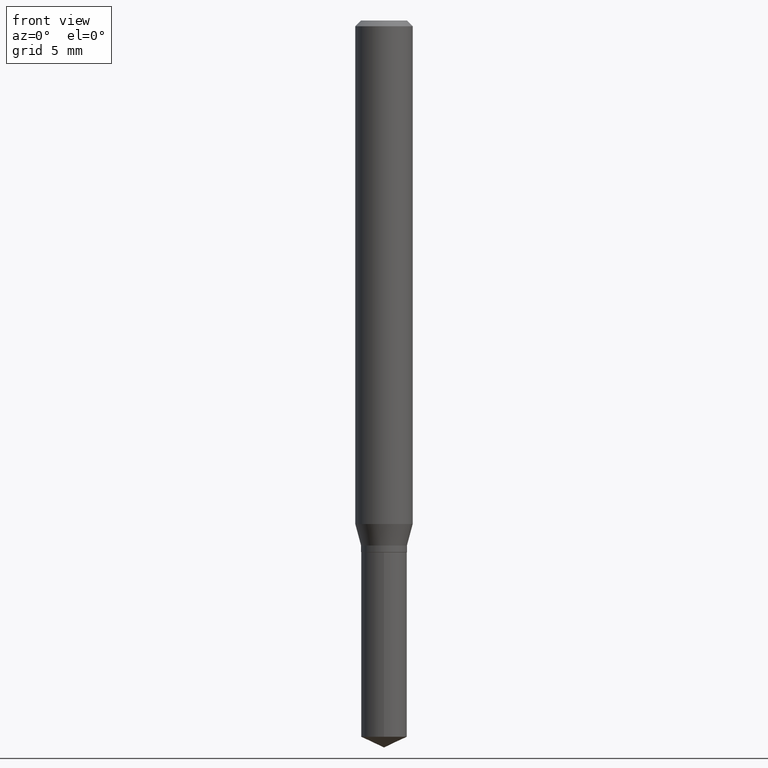
[diagram: clean part render]
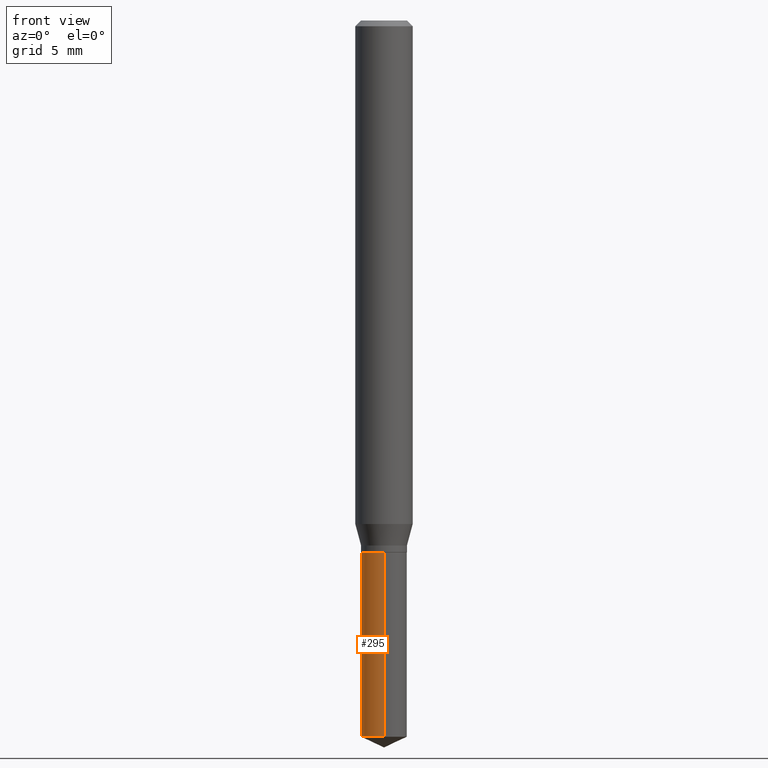
[diagram: same view with one face highlighted and labeled with its STEP entity id]
A machine part, front view. The second image highlights one B-rep face of the part: STEP entity #295.
In plain terms, the highlighted cylindrical surface (edge-blend (fillet) strip) has radius 1.2001 mm, axis along (-0, 0, 1).
Its self-contained STEP definition (entity closure, byte-faithful):
#13 = CARTESIAN_POINT ( 'NONE',  ( 3.357314426466833320E-16, 0.04724999999999485167, -1.474066963152176557 ) ) ;
#14 = VECTOR ( 'NONE', #420, 39.37007874015748143 ) ;
#42 = CARTESIAN_POINT ( 'NONE',  ( 3.357314426466833320E-16, 0.04724999999999617006, -1.094500000000000028 ) ) ;
#65 = DIRECTION ( 'NONE',  ( -2.445458899330790108E-29, 3.491495526022433205E-15, 1.000000000000000000 ) ) ;
#71 = EDGE_CURVE ( 'NONE', #121, #88, #263, .T. ) ;
#78 = DIRECTION ( 'NONE',  ( -6.982962677686265922E-15, -1.000000000000000000, 2.890844437739961472E-15 ) ) ;
#81 = EDGE_CURVE ( 'NONE', #88, #383, #136, .T. ) ;
#88 = VERTEX_POINT ( 'NONE', #42 ) ;
#106 = DIRECTION ( 'NONE',  ( -2.445458899330790108E-29, 3.491495526022433205E-15, 1.000000000000000000 ) ) ;
#113 = ORIENTED_EDGE ( 'NONE', *, *, #248, .T. ) ;
#121 = VERTEX_POINT ( 'NONE', #13 ) ;
#136 = CIRCLE ( 'NONE', #363, 0.04724999999999999339 ) ;
#144 = AXIS2_PLACEMENT_3D ( 'NONE', #153, #418, #78 ) ;
#153 = CARTESIAN_POINT ( 'NONE',  ( 2.676565608369631794E-29, -3.821426325363822773E-15, -1.094499999999999806 ) ) ;
#165 = CIRCLE ( 'NONE', #438, 0.04724999999999999339 ) ;
#181 = ORIENTED_EDGE ( 'NONE', *, *, #71, .F. ) ;
#186 = DIRECTION ( 'NONE',  ( -6.982962677686265922E-15, -1.000000000000000000, 5.781688875479922944E-15 ) ) ;
#248 = EDGE_CURVE ( 'NONE', #121, #316, #165, .T. ) ;
#258 = VECTOR ( 'NONE', #260, 39.37007874015748143 ) ;
#260 = DIRECTION ( 'NONE',  ( -2.445458899330790108E-29, 3.491495526022433599E-15, 1.000000000000000000 ) ) ;
#263 = LINE ( 'NONE', #275, #14 ) ;
#275 = CARTESIAN_POINT ( 'NONE',  ( 3.357314426466740136E-16, 0.04724999999999617006, -1.094500000000000028 ) ) ;
#277 = EDGE_CURVE ( 'NONE', #316, #383, #299, .T. ) ;
#295 = ADVANCED_FACE ( 'NONE', ( #409 ), #344, .T. ) ;
#299 = LINE ( 'NONE', #439, #258 ) ;
#302 = EDGE_LOOP ( 'NONE', ( #181, #113, #379, #320 ) ) ;
#316 = VERTEX_POINT ( 'NONE', #349 ) ;
#320 = ORIENTED_EDGE ( 'NONE', *, *, #81, .F. ) ;
#344 = CYLINDRICAL_SURFACE ( 'NONE', #144, 0.04724999999999999339 ) ;
#349 = CARTESIAN_POINT ( 'NONE',  ( -3.299449865206399663E-16, -0.04725000000000514205, -1.474066963152175891 ) ) ;
#363 = AXIS2_PLACEMENT_3D ( 'NONE', #404, #65, #373 ) ;
#373 = DIRECTION ( 'NONE',  ( -6.982962677686265922E-15, -1.000000000000000000, 2.890844437739961472E-15 ) ) ;
#379 = ORIENTED_EDGE ( 'NONE', *, *, #277, .T. ) ;
#383 = VERTEX_POINT ( 'NONE', #408 ) ;
#404 = CARTESIAN_POINT ( 'NONE',  ( 2.676565608369631794E-29, -3.821426325363822773E-15, -1.094499999999999806 ) ) ;
#408 = CARTESIAN_POINT ( 'NONE',  ( -3.299449865206492354E-16, -0.04725000000000382366, -1.094499999999999806 ) ) ;
#409 = FACE_OUTER_BOUND ( 'NONE', #302, .T. ) ;
#418 = DIRECTION ( 'NONE',  ( -2.445458899330790108E-29, 3.491495526022433205E-15, 1.000000000000000000 ) ) ;
#420 = DIRECTION ( 'NONE',  ( -2.445458899330790108E-29, 3.491495526022433599E-15, 1.000000000000000000 ) ) ;
#438 = AXIS2_PLACEMENT_3D ( 'NONE', #443, #106, #186 ) ;
#439 = CARTESIAN_POINT ( 'NONE',  ( -3.299449865206492354E-16, -0.04725000000000382366, -1.094499999999999806 ) ) ;
#443 = CARTESIAN_POINT ( 'NONE',  ( 3.604781016302083340E-29, -5.146682679035568391E-15, -1.474066963152176113 ) ) ;